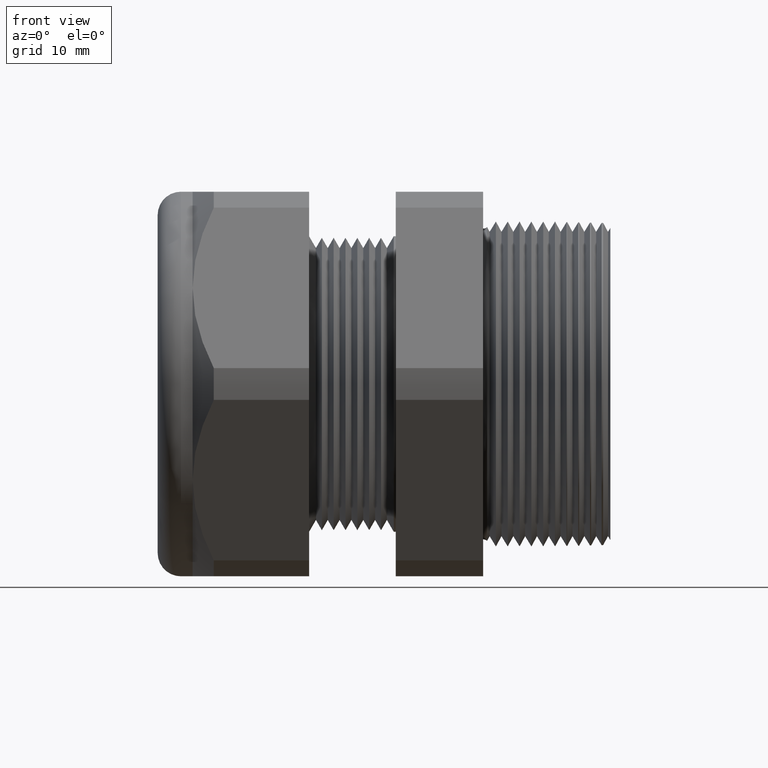
[diagram: clean part render]
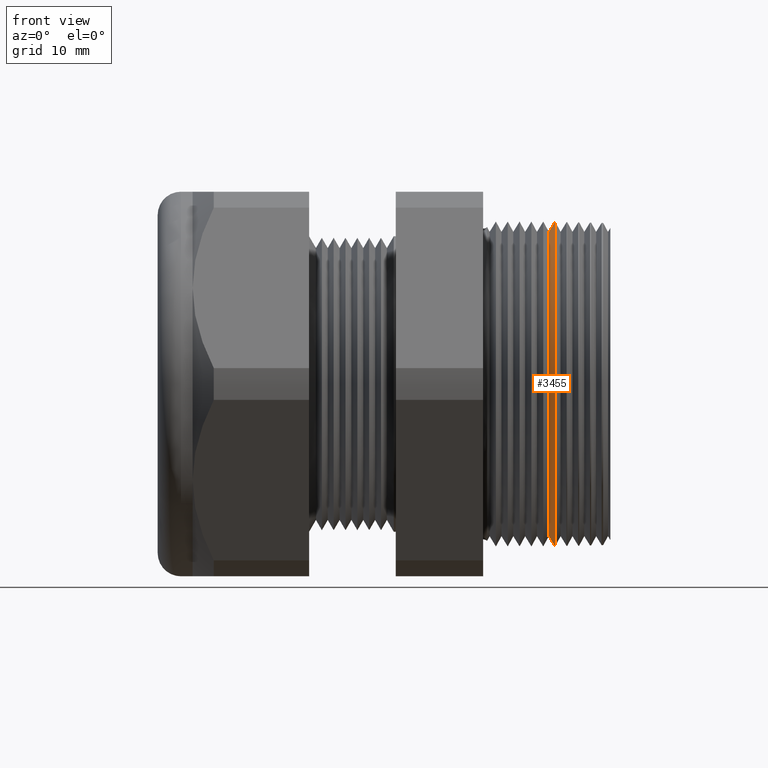
[diagram: same view with one face highlighted and labeled with its STEP entity id]
A machine part, front view. The second image highlights one B-rep face of the part: STEP entity #3455.
In plain terms, the highlighted conical surface has half-angle 58.5 deg.
Its self-contained STEP definition (entity closure, byte-faithful):
#116 = VERTEX_POINT ( 'NONE', #527 ) ;
#117 = EDGE_CURVE ( 'NONE', #3892, #116, #526, .T. ) ;
#120 = VERTEX_POINT ( 'NONE', #517 ) ;
#122 = EDGE_CURVE ( 'NONE', #124, #120, #516, .T. ) ;
#124 = VERTEX_POINT ( 'NONE', #512 ) ;
#512 = CARTESIAN_POINT ( 'NONE',  ( -0.08796098090543436100, 0.0000000000000000000, 0.5144091762748934600 ) ) ;
#513 = DIRECTION ( 'NONE',  ( 0.5224985647159464700, 1.044183048100714000E-016, 0.8526401643540936200 ) ) ;
#514 = VECTOR ( 'NONE', #513, 39.37007874015748100 ) ;
#515 = CARTESIAN_POINT ( 'NONE',  ( -0.08796098090543436100, 6.299695511770748300E-017, 0.5144091762748934600 ) ) ;
#516 = LINE ( 'NONE', #515, #514 ) ;
#517 = CARTESIAN_POINT ( 'NONE',  ( -0.06698647031329298100, 0.0000000000000000000, 0.5486364667713744500 ) ) ;
#523 = DIRECTION ( 'NONE',  ( 0.5224985647159464700, 0.0000000000000000000, -0.8526401643540936200 ) ) ;
#524 = VECTOR ( 'NONE', #523, 39.37007874015748100 ) ;
#525 = CARTESIAN_POINT ( 'NONE',  ( -0.08796098090543436100, 0.0000000000000000000, -0.5144091762748934600 ) ) ;
#526 = LINE ( 'NONE', #525, #524 ) ;
#527 = CARTESIAN_POINT ( 'NONE',  ( -0.06698647031329298100, 6.718858929270770300E-017, -0.5486364667713744500 ) ) ;
#1084 = CARTESIAN_POINT ( 'NONE',  ( -0.06698647031329298100, 0.0000000000000000000, 0.0000000000000000000 ) ) ;
#1137 = DIRECTION ( 'NONE',  ( 0.0000000000000000000, 0.0000000000000000000, -1.000000000000000000 ) ) ;
#1138 = DIRECTION ( 'NONE',  ( -1.000000000000000000, 0.0000000000000000000, 0.0000000000000000000 ) ) ;
#1139 = AXIS2_PLACEMENT_3D ( 'NONE', #1084, #1138, #1137 ) ;
#1140 = CIRCLE ( 'NONE', #1139, 0.5486364667713745600 ) ;
#1814 = DIRECTION ( 'NONE',  ( 1.000000000000000000, 0.0000000000000000000, 0.0000000000000000000 ) ) ;
#1815 = CARTESIAN_POINT ( 'NONE',  ( -0.08796098090543436100, 0.0000000000000000000, 0.0000000000000000000 ) ) ;
#1816 = AXIS2_PLACEMENT_3D ( 'NONE', #1815, #1814, #1875 ) ;
#1818 = CONICAL_SURFACE ( 'NONE', #1816, 0.5144091762748934600, 1.021017612416685600 ) ;
#1819 = FACE_OUTER_BOUND ( 'NONE', #3457, .T. ) ;
#1820 = DIRECTION ( 'NONE',  ( 0.0000000000000000000, 0.0000000000000000000, -1.000000000000000000 ) ) ;
#1821 = DIRECTION ( 'NONE',  ( 1.000000000000000000, 0.0000000000000000000, 0.0000000000000000000 ) ) ;
#1822 = AXIS2_PLACEMENT_3D ( 'NONE', #1829, #1821, #1820 ) ;
#1823 = CIRCLE ( 'NONE', #1822, 0.5144091762748934600 ) ;
#1829 = CARTESIAN_POINT ( 'NONE',  ( -0.08796098090543436100, 0.0000000000000000000, 0.0000000000000000000 ) ) ;
#1875 = DIRECTION ( 'NONE',  ( 0.0000000000000000000, 0.0000000000000000000, -1.000000000000000000 ) ) ;
#2667 = CARTESIAN_POINT ( 'NONE',  ( -0.08796098090543436100, 6.511616761981753000E-017, -0.5144091762748934600 ) ) ;
#2993 = EDGE_CURVE ( 'NONE', #116, #120, #1140, .T. ) ;
#3447 = ORIENTED_EDGE ( 'NONE', *, *, #122, .F. ) ;
#3448 = ORIENTED_EDGE ( 'NONE', *, *, #3452, .T. ) ;
#3452 = EDGE_CURVE ( 'NONE', #124, #3892, #1823, .T. ) ;
#3455 = ADVANCED_FACE ( 'NONE', ( #1819 ), #1818, .T. ) ;
#3456 = ORIENTED_EDGE ( 'NONE', *, *, #2993, .T. ) ;
#3457 = EDGE_LOOP ( 'NONE', ( #3447, #3448, #3458, #3456 ) ) ;
#3458 = ORIENTED_EDGE ( 'NONE', *, *, #117, .T. ) ;
#3892 = VERTEX_POINT ( 'NONE', #2667 ) ;